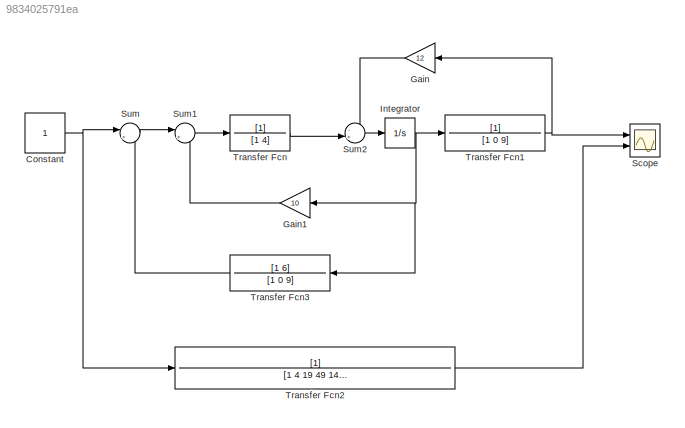
MODEL slx_9834025791ea
KIND model
CONFIG AbsTol = auto
CONFIG EnableMultiTasking = off
CONFIG FixedStep = auto
CONFIG MaxStep = 1e-2
CONFIG MinStep = auto
CONFIG RelTol = 1e-3
CONFIG SampleTimeConstraint = Unconstrained
CONFIG SolverName = VariableStepAuto
CONFIG StartTime = 0.0
CONFIG StopTime = 20
BLOCK [Constant] Constant
  SampleTime = -1
  VectorParams1D = off
BLOCK [Gain] Gain
  Gain = 12
  NameLocation = top
BLOCK [Gain] Gain1
  Gain = 10
  NameLocation = top
BLOCK [Integrator] Integrator
  Ports = [1, 1]
BLOCK [Scope] Scope
  Floating = off
  NumInputPorts = 2
  Ports = [2]
  ScopeSpecificationString = Simulink.scopes.TimeScopeBlockCfg('CurrentConfiguration', extmgr.ConfigurationSet(extmgr.Configuration('Core','General UI',true),extmgr.Configuration('Core','Source UI',true),extmgr.Configuration('Sources','WiredSimulink',true),extmgr.Configuration('Visuals','Time Domain',true,'SerializedDisplays',{struct('MinYLimReal','-57.64405','MaxYLimReal','82.7969','YLabelReal','','MinYLimMag','0.00000','Max...<+1452ch>
BLOCK [Sum] Sum
  Inputs = |+-
  Ports = [2, 1]
BLOCK [Sum] Sum1
  Inputs = |+-
  Ports = [2, 1]
BLOCK [Sum] Sum2
  Inputs = -+|
  Ports = [2, 1]
BLOCK [TransferFcn] Transfer Fcn
  Denominator = [1 4]
BLOCK [TransferFcn] Transfer Fcn1
  Denominator = [1 0 9]
BLOCK [TransferFcn] Transfer Fcn2
  Denominator = [1 4 19 49 144]
BLOCK [TransferFcn] Transfer Fcn3
  Denominator = [1 0 9]
  NameLocation = top
  Numerator = [1 6]
NET Constant:1 -> Sum:1, Transfer Fcn2:1
LINE Gain1:1 -> Sum1:2
LINE Gain:1 -> Sum2:1
NET Integrator:1 -> Gain1:1, Transfer Fcn1:1, Transfer Fcn3:1
LINE Sum1:1 -> Transfer Fcn:1
LINE Sum2:1 -> Integrator:1
LINE Sum:1 -> Sum1:1
NET Transfer Fcn1:1 -> Gain:1, Scope:1
LINE Transfer Fcn2:1 -> Scope:2
LINE Transfer Fcn3:1 -> Sum:2
LINE Transfer Fcn:1 -> Sum2:2
note: NET lines group one-source signal fan-out (src -> all destinations, sorted); 1:1 wires keep LINE
